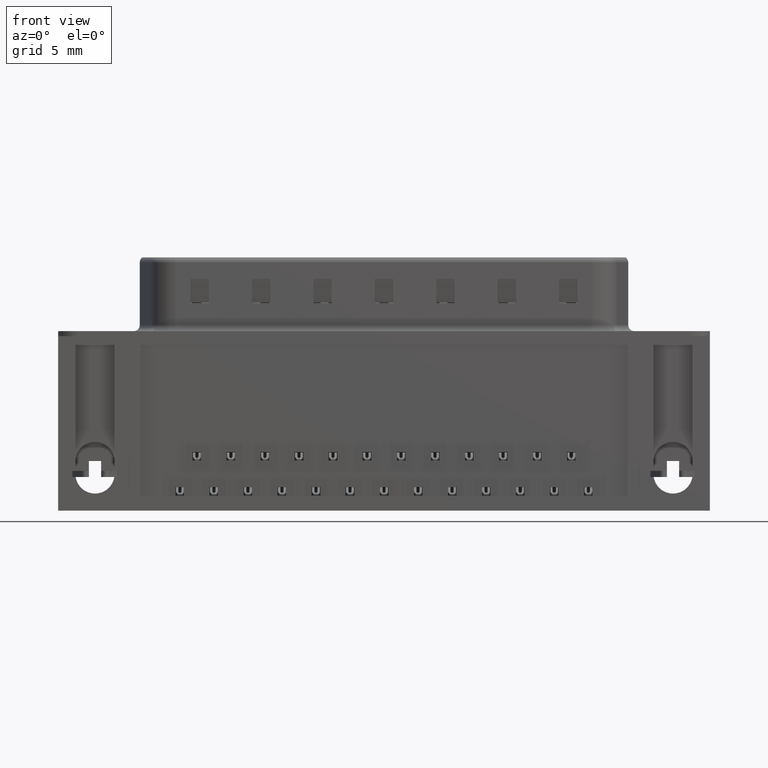
[diagram: clean part render]
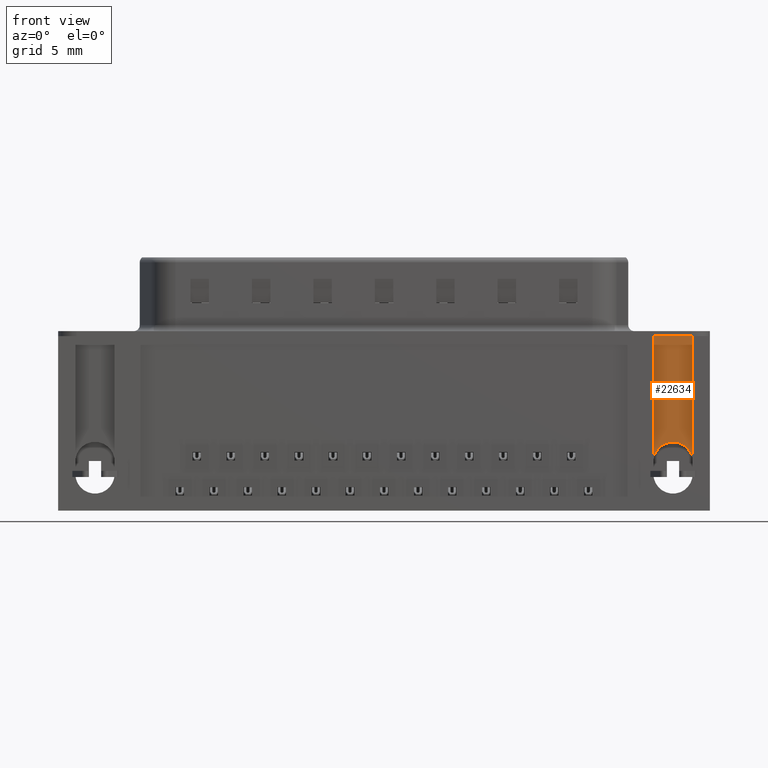
[diagram: same view with one face highlighted and labeled with its STEP entity id]
A machine part, front view. The second image highlights one B-rep face of the part: STEP entity #22634.
In plain terms, the highlighted planar face has unit normal (0, 1, 0).
Its self-contained STEP definition (entity closure, byte-faithful):
#220 = DIRECTION ( 'NONE',  ( -1.000000000000000000, 0.0000000000000000000, 0.0000000000000000000 ) ) ;
#533 = ORIENTED_EDGE ( 'NONE', *, *, #4105, .F. ) ;
#1900 = CARTESIAN_POINT ( 'NONE',  ( 47.04000000000000625, -4.775000000000010125, -8.619999999999995666 ) ) ;
#1935 = EDGE_CURVE ( 'NONE', #18242, #19990, #18874, .T. ) ;
#2075 = CIRCLE ( 'NONE', #8861, 1.600000000000004086 ) ;
#2664 = FACE_OUTER_BOUND ( 'NONE', #13183, .T. ) ;
#2914 = CARTESIAN_POINT ( 'NONE',  ( -1.499999999999994227, -4.774999999999998579, 0.0000000000000000000 ) ) ;
#3200 = DIRECTION ( 'NONE',  ( 0.0000000000000000000, 0.0000000000000000000, -1.000000000000000000 ) ) ;
#3667 = CARTESIAN_POINT ( 'NONE',  ( 45.44000000000000483, -4.775000000000008349, 0.0000000000000000000 ) ) ;
#4105 = EDGE_CURVE ( 'NONE', #21833, #13530, #6526, .T. ) ;
#5186 = CARTESIAN_POINT ( 'NONE',  ( 48.64000000000000057, -4.775000000000008349, 0.0000000000000000000 ) ) ;
#5560 = AXIS2_PLACEMENT_3D ( 'NONE', #16487, #18438, #6264 ) ;
#6264 = DIRECTION ( 'NONE',  ( -1.000000000000000000, 1.970636860084006915E-16, 0.0000000000000000000 ) ) ;
#6526 = LINE ( 'NONE', #2914, #14438 ) ;
#7903 = PLANE ( 'NONE',  #5560 ) ;
#8184 = EDGE_CURVE ( 'NONE', #19990, #17663, #2075, .T. ) ;
#8590 = CARTESIAN_POINT ( 'NONE',  ( 47.04000000000000625, -4.775000000000010125, -10.22000000000000064 ) ) ;
#8668 = EDGE_CURVE ( 'NONE', #21833, #18242, #14004, .T. ) ;
#8679 = CARTESIAN_POINT ( 'NONE',  ( 45.44000000000000483, -4.775000000000008349, 0.0000000000000000000 ) ) ;
#8861 = AXIS2_PLACEMENT_3D ( 'NONE', #8590, #12528, #10545 ) ;
#9145 = CARTESIAN_POINT ( 'NONE',  ( 45.43999999999999773, -4.775000000000008349, -10.22000000000000064 ) ) ;
#9849 = CARTESIAN_POINT ( 'NONE',  ( 48.64000000000000057, -4.775000000000010125, 0.0000000000000000000 ) ) ;
#10003 = DIRECTION ( 'NONE',  ( 1.000000000000000000, -1.970636860084006915E-16, 0.0000000000000000000 ) ) ;
#10545 = DIRECTION ( 'NONE',  ( -1.000000000000000000, 0.0000000000000000000, 0.0000000000000000000 ) ) ;
#12011 = ORIENTED_EDGE ( 'NONE', *, *, #8184, .T. ) ;
#12435 = ORIENTED_EDGE ( 'NONE', *, *, #20619, .T. ) ;
#12528 = DIRECTION ( 'NONE',  ( 1.970636860084006915E-16, 1.000000000000000000, -0.0000000000000000000 ) ) ;
#12617 = AXIS2_PLACEMENT_3D ( 'NONE', #21347, #19481, #220 ) ;
#13183 = EDGE_LOOP ( 'NONE', ( #17813, #20706, #12011, #12435, #533 ) ) ;
#13530 = VERTEX_POINT ( 'NONE', #5186 ) ;
#14004 = LINE ( 'NONE', #3667, #18399 ) ;
#14438 = VECTOR ( 'NONE', #10003, 1000.000000000000000 ) ;
#14987 = VECTOR ( 'NONE', #16926, 1000.000000000000000 ) ;
#16487 = CARTESIAN_POINT ( 'NONE',  ( 47.04000000000000625, -4.775000000000010125, 0.0000000000000000000 ) ) ;
#16926 = DIRECTION ( 'NONE',  ( -0.0000000000000000000, -0.0000000000000000000, 1.000000000000000000 ) ) ;
#17663 = VERTEX_POINT ( 'NONE', #19031 ) ;
#17813 = ORIENTED_EDGE ( 'NONE', *, *, #8668, .T. ) ;
#18242 = VERTEX_POINT ( 'NONE', #9145 ) ;
#18399 = VECTOR ( 'NONE', #3200, 1000.000000000000000 ) ;
#18438 = DIRECTION ( 'NONE',  ( 1.970636860084006915E-16, 1.000000000000000000, -0.0000000000000000000 ) ) ;
#18874 = CIRCLE ( 'NONE', #12617, 1.600000000000004086 ) ;
#19031 = CARTESIAN_POINT ( 'NONE',  ( 48.64000000000000767, -4.775000000000010125, -10.22000000000000064 ) ) ;
#19481 = DIRECTION ( 'NONE',  ( 1.970636860084006915E-16, 1.000000000000000000, -0.0000000000000000000 ) ) ;
#19990 = VERTEX_POINT ( 'NONE', #1900 ) ;
#20619 = EDGE_CURVE ( 'NONE', #17663, #13530, #22041, .T. ) ;
#20706 = ORIENTED_EDGE ( 'NONE', *, *, #1935, .T. ) ;
#21347 = CARTESIAN_POINT ( 'NONE',  ( 47.04000000000000625, -4.775000000000010125, -10.22000000000000064 ) ) ;
#21833 = VERTEX_POINT ( 'NONE', #8679 ) ;
#22041 = LINE ( 'NONE', #9849, #14987 ) ;
#22634 = ADVANCED_FACE ( 'NONE', ( #2664 ), #7903, .F. ) ;